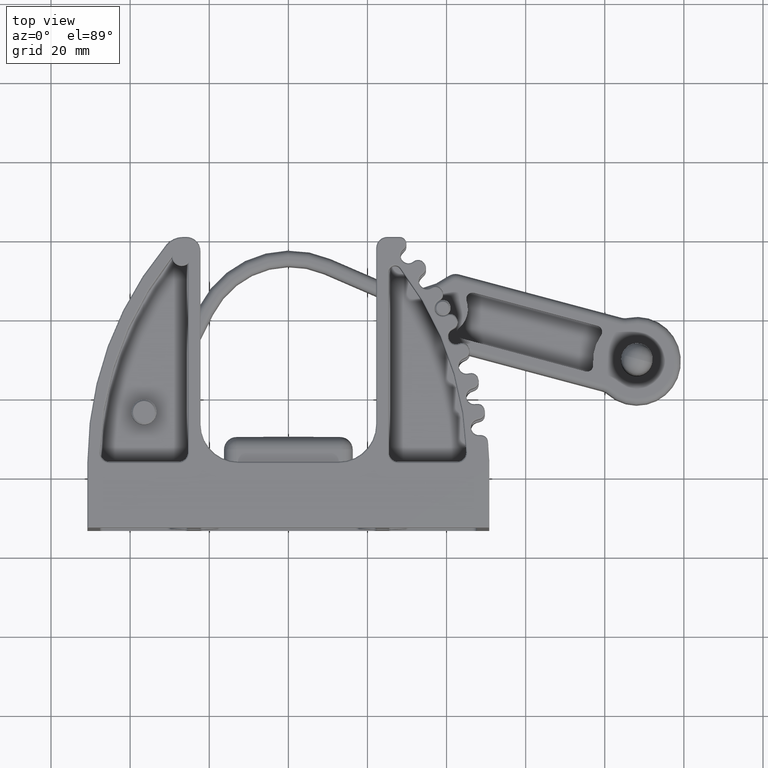
[diagram: clean part render]
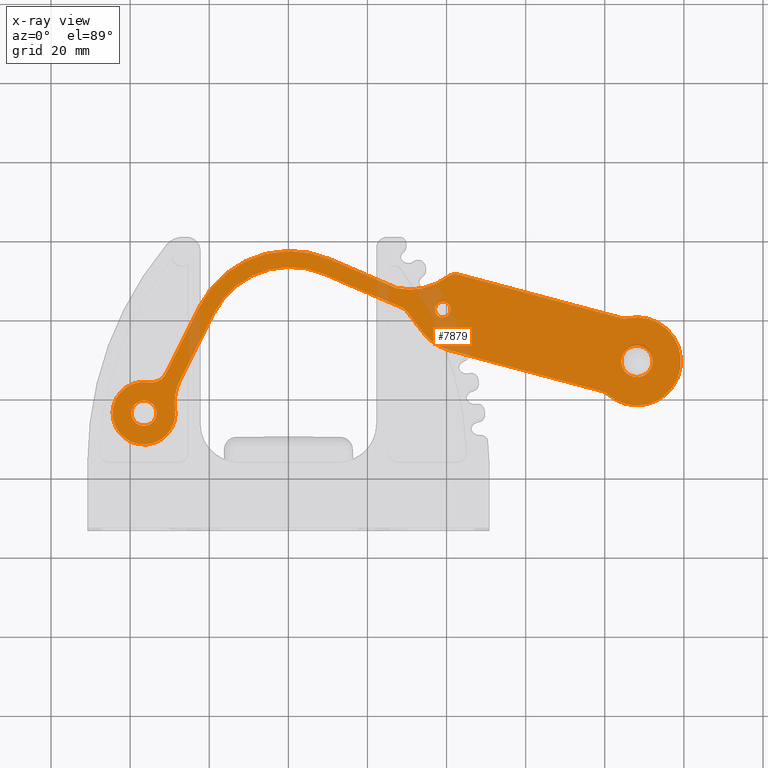
[diagram: x-ray — body ghosted, one internal face saturated and labeled with its STEP entity id]
A machine part, top view, then the same camera in x-ray: the body is ghosted and one INTERNAL B-rep face — a face not visible from any outside direction — is saturated and labeled: STEP entity #7879.
In plain terms, the highlighted planar face has unit normal (-0, 0, 1).
Its self-contained STEP definition (entity closure, byte-faithful):
#91 = DIRECTION ( 'NONE',  ( 3.761581922631320000E-036, -1.504632769052528000E-036, -1.000000000000000000 ) ) ;
#177 = ORIENTED_EDGE ( 'NONE', *, *, #5335, .T. ) ;
#294 = ORIENTED_EDGE ( 'NONE', *, *, #15690, .T. ) ;
#391 = EDGE_CURVE ( 'NONE', #8888, #29413, #24514, .T. ) ;
#406 = DIRECTION ( 'NONE',  ( -3.761581922631320000E-036, 1.504632769052528000E-036, 1.000000000000000000 ) ) ;
#488 = EDGE_CURVE ( 'NONE', #7400, #12127, #28442, .T. ) ;
#491 = LINE ( 'NONE', #26630, #29451 ) ;
#517 = CARTESIAN_POINT ( 'NONE',  ( 0.0000000000000000000, 0.0000000000000000000, 0.0000000000000000000 ) ) ;
#873 = AXIS2_PLACEMENT_3D ( 'NONE', #24998, #11306, #27273 ) ;
#1125 = DIRECTION ( 'NONE',  ( 1.000000000000000000, 0.0000000000000000000, -2.633107345841919300E-036 ) ) ;
#1254 = CARTESIAN_POINT ( 'NONE',  ( 3.127005977522338200, 0.5625000000000003300, 1.365923996832131600E-016 ) ) ;
#1344 = CIRCLE ( 'NONE', #6646, 0.4375000000000010000 ) ;
#1466 = DIRECTION ( 'NONE',  ( 1.000000000000000000, 0.0000000000000000000, -2.633107345841919000E-036 ) ) ;
#1485 = CARTESIAN_POINT ( 'NONE',  ( 3.234208584750658800, -0.1874999999999998300, 1.365923996832131600E-016 ) ) ;
#1660 = AXIS2_PLACEMENT_3D ( 'NONE', #9490, #25454, #11805 ) ;
#1772 = CARTESIAN_POINT ( 'NONE',  ( 0.7078158918791290800, -1.270111953763838300, 0.0000000000000000000 ) ) ;
#1855 = CARTESIAN_POINT ( 'NONE',  ( 4.804805898398901000, -0.1875000000000010800, 1.365923996832131600E-016 ) ) ;
#2029 = DIRECTION ( 'NONE',  ( 1.000000000000000000, 1.761747773680471700E-015, -2.633107345841923000E-036 ) ) ;
#2066 = ORIENTED_EDGE ( 'NONE', *, *, #25351, .F. ) ;
#2069 = CIRCLE ( 'NONE', #1660, 0.1250000000000004400 ) ;
#2136 = DIRECTION ( 'NONE',  ( 1.000000000000000000, 0.0000000000000000000, -2.633107345841914700E-036 ) ) ;
#2143 = CARTESIAN_POINT ( 'NONE',  ( 0.5804401961130519800, -1.576848098390637700, 4.701977403289150000E-037 ) ) ;
#2417 = CARTESIAN_POINT ( 'NONE',  ( 2.644572853812336100, 0.1045000000000007600, 0.0000000000000000000 ) ) ;
#2481 = CIRCLE ( 'NONE', #27576, 0.1624932898991211500 ) ;
#2554 = EDGE_CURVE ( 'NONE', #5476, #25522, #14223, .T. ) ;
#2650 = AXIS2_PLACEMENT_3D ( 'NONE', #18439, #4764, #20741 ) ;
#2662 = VERTEX_POINT ( 'NONE', #27389 ) ;
#2722 = LINE ( 'NONE', #6743, #6823 ) ;
#2878 = CARTESIAN_POINT ( 'NONE',  ( 2.927019829343439700, -0.08200610711542508100, 1.365923996832131600E-016 ) ) ;
#3065 = FACE_OUTER_BOUND ( 'NONE', #19476, .T. ) ;
#3114 = ORIENTED_EDGE ( 'NONE', *, *, #2554, .T. ) ;
#3164 = EDGE_CURVE ( 'NONE', #20089, #10921, #5978, .T. ) ;
#3852 = DIRECTION ( 'NONE',  ( -3.761581922631320000E-036, 1.504632769052528000E-036, 1.000000000000000000 ) ) ;
#3872 = ORIENTED_EDGE ( 'NONE', *, *, #12607, .F. ) ;
#4121 = EDGE_CURVE ( 'NONE', #21636, #23005, #18916, .T. ) ;
#4175 = VERTEX_POINT ( 'NONE', #22339 ) ;
#4252 = ORIENTED_EDGE ( 'NONE', *, *, #391, .T. ) ;
#4375 = CARTESIAN_POINT ( 'NONE',  ( 0.7181599584110964800, -1.168933562693651200, 1.365923996832131600E-016 ) ) ;
#4698 = ORIENTED_EDGE ( 'NONE', *, *, #18480, .T. ) ;
#4764 = DIRECTION ( 'NONE',  ( 3.761581922631320000E-036, -1.504632769052528000E-036, -1.000000000000000000 ) ) ;
#4812 = ORIENTED_EDGE ( 'NONE', *, *, #16651, .T. ) ;
#4868 = VERTEX_POINT ( 'NONE', #18384 ) ;
#4958 = ORIENTED_EDGE ( 'NONE', *, *, #7484, .T. ) ;
#5169 = CARTESIAN_POINT ( 'NONE',  ( 0.7448154637153880900, -1.458872658149562800, 1.365923996832131600E-016 ) ) ;
#5320 = CARTESIAN_POINT ( 'NONE',  ( 5.062500000000001800, 0.1875000000000003900, 0.0000000000000000000 ) ) ;
#5335 = EDGE_CURVE ( 'NONE', #2662, #23273, #21324, .T. ) ;
#5476 = VERTEX_POINT ( 'NONE', #1855 ) ;
#5543 = VECTOR ( 'NONE', #9518, 39.37007874015748900 ) ;
#5744 = LINE ( 'NONE', #7570, #11827 ) ;
#5906 = ORIENTED_EDGE ( 'NONE', *, *, #9797, .T. ) ;
#5978 = CIRCLE ( 'NONE', #2650, 0.5000000000000007800 ) ;
#6266 = CARTESIAN_POINT ( 'NONE',  ( 0.4554401961130519800, -1.576848098390637700, 0.0000000000000000000 ) ) ;
#6283 = DIRECTION ( 'NONE',  ( -0.9891385689570010300, 0.1469860245115031400, 6.394689268473226700E-036 ) ) ;
#6513 = AXIS2_PLACEMENT_3D ( 'NONE', #22657, #8991, #24964 ) ;
#6525 = ORIENTED_EDGE ( 'NONE', *, *, #25061, .T. ) ;
#6646 = AXIS2_PLACEMENT_3D ( 'NONE', #14055, #406, #16383 ) ;
#6743 = CARTESIAN_POINT ( 'NONE',  ( 0.7181599584110964800, -1.168933562693651200, 0.0000000000000000000 ) ) ;
#6823 = VECTOR ( 'NONE', #22704, 39.37007874015748900 ) ;
#6867 = ORIENTED_EDGE ( 'NONE', *, *, #27019, .F. ) ;
#6938 = VERTEX_POINT ( 'NONE', #20672 ) ;
#6970 = EDGE_LOOP ( 'NONE', ( #9918, #2066 ) ) ;
#7043 = AXIS2_PLACEMENT_3D ( 'NONE', #517, #25677, #11998 ) ;
#7063 = CARTESIAN_POINT ( 'NONE',  ( 2.721370042664141800, 0.07812652677885507900, 1.365923996832131600E-016 ) ) ;
#7266 = CARTESIAN_POINT ( 'NONE',  ( 1.828273722018075100, 0.2258020783540451700, 1.365923996832131600E-016 ) ) ;
#7400 = VERTEX_POINT ( 'NONE', #7266 ) ;
#7484 = EDGE_CURVE ( 'NONE', #18217, #14233, #5744, .T. ) ;
#7570 = CARTESIAN_POINT ( 'NONE',  ( 2.721370042664141800, 0.07812652677885507900, 0.0000000000000000000 ) ) ;
#7593 = DIRECTION ( 'NONE',  ( 1.000000000000000000, 0.0000000000000000000, -2.633107345841923300E-036 ) ) ;
#7698 = EDGE_CURVE ( 'NONE', #10921, #21733, #2722, .T. ) ;
#7879 = ADVANCED_FACE ( 'NONE', ( #3065, #9141, #26627, #8425 ), #18807, .T. ) ;
#7968 = CARTESIAN_POINT ( 'NONE',  ( 0.3304401961130519200, -1.576848098390637700, -4.701977403289150000E-037 ) ) ;
#8425 = FACE_BOUND ( 'NONE', #6970, .T. ) ;
#8546 = ORIENTED_EDGE ( 'NONE', *, *, #20486, .T. ) ;
#8558 = DIRECTION ( 'NONE',  ( -3.761581922631320000E-036, 1.504632769052528000E-036, 1.000000000000000000 ) ) ;
#8571 = DIRECTION ( 'NONE',  ( 1.000000000000000000, 0.0000000000000000000, -2.633107345841919300E-036 ) ) ;
#8584 = CARTESIAN_POINT ( 'NONE',  ( 1.851240288347999700, 0.3803549797535787400, 0.0000000000000000000 ) ) ;
#8624 = CARTESIAN_POINT ( 'NONE',  ( 0.5651424792023360700, -1.137315315484217700, 1.365923996832131600E-016 ) ) ;
#8752 = AXIS2_PLACEMENT_3D ( 'NONE', #13367, #29374, #15698 ) ;
#8888 = VERTEX_POINT ( 'NONE', #1254 ) ;
#8908 = CARTESIAN_POINT ( 'NONE',  ( 0.4229204446123867600, -1.266044759022585000, 1.365923996832131600E-016 ) ) ;
#8991 = DIRECTION ( 'NONE',  ( -3.761581922631320000E-036, 1.504632769052528000E-036, 1.000000000000000000 ) ) ;
#9141 = FACE_BOUND ( 'NONE', #14033, .T. ) ;
#9286 = CIRCLE ( 'NONE', #6513, 0.1250000000000002500 ) ;
#9490 = CARTESIAN_POINT ( 'NONE',  ( 2.644572853812342300, -0.02049999999999995900, 0.0000000000000000000 ) ) ;
#9518 = DIRECTION ( 'NONE',  ( -0.2023567821403768100, -0.9793118669360603200, -2.256949153578784700E-036 ) ) ;
#9623 = VECTOR ( 'NONE', #6283, 39.37007874015747400 ) ;
#9636 = CARTESIAN_POINT ( 'NONE',  ( 0.8677042951441749100, -0.4452091485833831700, 1.365923996832131600E-016 ) ) ;
#9758 = DIRECTION ( 'NONE',  ( 3.761581922631320000E-036, -1.504632769052528000E-036, -1.000000000000000000 ) ) ;
#9797 = EDGE_CURVE ( 'NONE', #27260, #21636, #21754, .T. ) ;
#9918 = ORIENTED_EDGE ( 'NONE', *, *, #22813, .F. ) ;
#10296 = AXIS2_PLACEMENT_3D ( 'NONE', #17534, #3852, #19817 ) ;
#10428 = DIRECTION ( 'NONE',  ( 3.761581922631320000E-036, -1.504632769052528000E-036, -1.000000000000000000 ) ) ;
#10534 = CARTESIAN_POINT ( 'NONE',  ( 3.140499999999999400, 0.1874999999999998300, 2.934033899652433100E-037 ) ) ;
#10565 = EDGE_CURVE ( 'NONE', #25522, #2662, #1344, .T. ) ;
#10921 = VERTEX_POINT ( 'NONE', #4375 ) ;
#11029 = CARTESIAN_POINT ( 'NONE',  ( 2.984499999999999300, 0.1874999999999998300, -2.934033899652432600E-037 ) ) ;
#11047 = CIRCLE ( 'NONE', #16603, 0.5000000000000007800 ) ;
#11056 = LINE ( 'NONE', #8584, #9623 ) ;
#11217 = ORIENTED_EDGE ( 'NONE', *, *, #26359, .F. ) ;
#11258 = DIRECTION ( 'NONE',  ( -3.761581922631320000E-036, 1.504632769052528000E-036, 1.000000000000000000 ) ) ;
#11306 = DIRECTION ( 'NONE',  ( 3.761581922631320000E-036, -1.504632769052528000E-036, -1.000000000000000000 ) ) ;
#11319 = AXIS2_PLACEMENT_3D ( 'NONE', #28506, #14824, #1125 ) ;
#11327 = ORIENTED_EDGE ( 'NONE', *, *, #488, .T. ) ;
#11334 = VERTEX_POINT ( 'NONE', #2143 ) ;
#11386 = ORIENTED_EDGE ( 'NONE', *, *, #4121, .T. ) ;
#11501 = AXIS2_PLACEMENT_3D ( 'NONE', #6266, #22236, #8571 ) ;
#11620 = LINE ( 'NONE', #23194, #5543 ) ;
#11683 = CIRCLE ( 'NONE', #8752, 1.009105567046601400 ) ;
#11805 = DIRECTION ( 'NONE',  ( 1.000000000000000000, 3.551402391763529800E-015, -2.633107345841922700E-036 ) ) ;
#11827 = VECTOR ( 'NONE', #21245, 39.37007874015748100 ) ;
#11998 = DIRECTION ( 'NONE',  ( 1.000000000000000000, -5.171373560126677400E-042, -2.633107345841919000E-036 ) ) ;
#12127 = VERTEX_POINT ( 'NONE', #15466 ) ;
#12607 = EDGE_CURVE ( 'NONE', #6938, #17469, #26626, .T. ) ;
#12772 = AXIS2_PLACEMENT_3D ( 'NONE', #24959, #11258, #27243 ) ;
#12889 = DIRECTION ( 'NONE',  ( -3.761581922631320000E-036, 1.504632769052528000E-036, 1.000000000000000000 ) ) ;
#12966 = DIRECTION ( 'NONE',  ( 1.000000000000000000, -5.171373560126676100E-042, -3.009265538105050700E-036 ) ) ;
#13180 = VERTEX_POINT ( 'NONE', #11029 ) ;
#13308 = DIRECTION ( 'NONE',  ( 3.761581922631320000E-036, -1.504632769052528000E-036, -1.000000000000000000 ) ) ;
#13367 = CARTESIAN_POINT ( 'NONE',  ( 1.702915872735392400, -0.6177902567614397300, 0.0000000000000000000 ) ) ;
#13498 = CARTESIAN_POINT ( 'NONE',  ( 4.906250000000000000, 0.1875000000000003900, -5.877471754111508500E-037 ) ) ;
#13501 = DIRECTION ( 'NONE',  ( -3.761581922631320000E-036, 1.504632769052528000E-036, 1.000000000000000000 ) ) ;
#13732 = CIRCLE ( 'NONE', #15454, 0.07800000000000009700 ) ;
#13750 = CARTESIAN_POINT ( 'NONE',  ( 0.4060108721066453300, -1.104433696220828800, 0.0000000000000000000 ) ) ;
#13836 = CIRCLE ( 'NONE', #17147, 0.1250000000000002500 ) ;
#14005 = EDGE_CURVE ( 'NONE', #4868, #18359, #11056, .T. ) ;
#14033 = EDGE_LOOP ( 'NONE', ( #27590, #6867 ) ) ;
#14055 = CARTESIAN_POINT ( 'NONE',  ( 5.062500000000001800, 0.1875000000000003900, 0.0000000000000000000 ) ) ;
#14223 = CIRCLE ( 'NONE', #27330, 0.1249999999999999000 ) ;
#14233 = VERTEX_POINT ( 'NONE', #2878 ) ;
#14291 = CIRCLE ( 'NONE', #25087, 0.1562500000000019200 ) ;
#14481 = CIRCLE ( 'NONE', #10296, 0.3125000000000005600 ) ;
#14824 = DIRECTION ( 'NONE',  ( -3.761581922631320000E-036, 1.504632769052528000E-036, 1.000000000000000000 ) ) ;
#14914 = CARTESIAN_POINT ( 'NONE',  ( 3.028484908572962400, 0.5144324312177401800, 1.365923996832131600E-016 ) ) ;
#15145 = DIRECTION ( 'NONE',  ( -3.761581922631320000E-036, 1.504632769052528000E-036, 1.000000000000000000 ) ) ;
#15312 = EDGE_CURVE ( 'NONE', #12127, #18217, #2069, .T. ) ;
#15333 = ORIENTED_EDGE ( 'NONE', *, *, #24376, .T. ) ;
#15454 = AXIS2_PLACEMENT_3D ( 'NONE', #27187, #13501, #29477 ) ;
#15466 = CARTESIAN_POINT ( 'NONE',  ( 2.644572853812336100, 0.1045000000000007600, 1.365923996832131600E-016 ) ) ;
#15661 = EDGE_CURVE ( 'NONE', #18359, #4175, #11683, .T. ) ;
#15690 = EDGE_CURVE ( 'NONE', #23273, #8888, #23098, .T. ) ;
#15698 = DIRECTION ( 'NONE',  ( 1.000000000000000000, 0.0000000000000000000, -2.633107345841919000E-036 ) ) ;
#15732 = DIRECTION ( 'NONE',  ( 3.761581922631320000E-036, -1.504632769052528000E-036, -1.000000000000000000 ) ) ;
#15799 = DIRECTION ( 'NONE',  ( -3.761581922631320000E-036, 1.504632769052528000E-036, 1.000000000000000000 ) ) ;
#16078 = DIRECTION ( 'NONE',  ( 1.000000000000000000, 8.406033244081171500E-016, -2.633107345841922000E-036 ) ) ;
#16137 = CARTESIAN_POINT ( 'NONE',  ( 4.862071254310262900, -0.2013888888888882000, 1.365923996832131600E-016 ) ) ;
#16383 = DIRECTION ( 'NONE',  ( 1.000000000000000000, 0.0000000000000000000, -2.633107345841918300E-036 ) ) ;
#16539 = VERTEX_POINT ( 'NONE', #7968 ) ;
#16603 = AXIS2_PLACEMENT_3D ( 'NONE', #23443, #9758, #25736 ) ;
#16651 = EDGE_CURVE ( 'NONE', #24198, #5476, #491, .T. ) ;
#17147 = AXIS2_PLACEMENT_3D ( 'NONE', #28840, #15145, #1466 ) ;
#17455 = VERTEX_POINT ( 'NONE', #8624 ) ;
#17469 = VERTEX_POINT ( 'NONE', #13498 ) ;
#17534 = CARTESIAN_POINT ( 'NONE',  ( 0.4554401961130519800, -1.576848098390637700, 0.0000000000000000000 ) ) ;
#18217 = VERTEX_POINT ( 'NONE', #7063 ) ;
#18359 = VERTEX_POINT ( 'NONE', #23633 ) ;
#18384 = CARTESIAN_POINT ( 'NONE',  ( 2.562500000000000000, 0.2746617627545027100, 1.365923996832131600E-016 ) ) ;
#18409 = ORIENTED_EDGE ( 'NONE', *, *, #15312, .T. ) ;
#18439 = CARTESIAN_POINT ( 'NONE',  ( 1.207815891879129100, -1.270111953763838300, 0.0000000000000000000 ) ) ;
#18480 = EDGE_CURVE ( 'NONE', #27778, #27260, #14481, .T. ) ;
#18622 = EDGE_CURVE ( 'NONE', #4175, #17455, #11620, .T. ) ;
#18669 = AXIS2_PLACEMENT_3D ( 'NONE', #29488, #15799, #2136 ) ;
#18807 = PLANE ( 'NONE',  #7043 ) ;
#18916 = CIRCLE ( 'NONE', #11501, 0.3125000000000005600 ) ;
#19050 = EDGE_CURVE ( 'NONE', #13180, #21432, #13732, .T. ) ;
#19476 = EDGE_LOOP ( 'NONE', ( #4698, #5906, #11386, #15333, #25181, #21407, #8546, #11327, #18409, #4958, #6525, #4812, #3114, #27094, #177, #294, #4252, #20187, #27121, #21049, #29190, #19483 ) ) ;
#19483 = ORIENTED_EDGE ( 'NONE', *, *, #26618, .T. ) ;
#19817 = DIRECTION ( 'NONE',  ( 1.000000000000000000, 0.0000000000000000000, -2.633107345841919300E-036 ) ) ;
#20089 = VERTEX_POINT ( 'NONE', #1772 ) ;
#20108 = CIRCLE ( 'NONE', #23452, 0.8528555670466004800 ) ;
#20187 = ORIENTED_EDGE ( 'NONE', *, *, #20544, .T. ) ;
#20284 = DIRECTION ( 'NONE',  ( -1.000000000000000000, 5.171373560126676100E-042, 3.009265538105050700E-036 ) ) ;
#20486 = EDGE_CURVE ( 'NONE', #21733, #7400, #20108, .T. ) ;
#20544 = EDGE_CURVE ( 'NONE', #29413, #4868, #25446, .T. ) ;
#20672 = CARTESIAN_POINT ( 'NONE',  ( 5.218750000000003600, 0.1875000000000004200, 5.877471754111509400E-037 ) ) ;
#20741 = DIRECTION ( 'NONE',  ( 1.000000000000000000, 0.0000000000000000000, -2.633107345841919300E-036 ) ) ;
#21049 = ORIENTED_EDGE ( 'NONE', *, *, #15661, .T. ) ;
#21245 = DIRECTION ( 'NONE',  ( 0.7890122142308524400, -0.6143775108144238200, -7.147005652999508000E-036 ) ) ;
#21272 = DIRECTION ( 'NONE',  ( -3.761581922631320000E-036, 1.504632769052528000E-036, 1.000000000000000000 ) ) ;
#21324 = CIRCLE ( 'NONE', #25509, 0.1249999999999999000 ) ;
#21407 = ORIENTED_EDGE ( 'NONE', *, *, #7698, .T. ) ;
#21432 = VERTEX_POINT ( 'NONE', #10534 ) ;
#21636 = VERTEX_POINT ( 'NONE', #22989 ) ;
#21733 = VERTEX_POINT ( 'NONE', #9636 ) ;
#21754 = CIRCLE ( 'NONE', #11319, 0.3125000000000005600 ) ;
#22228 = CARTESIAN_POINT ( 'NONE',  ( 3.062499999999999600, 0.1874999999999998300, 0.0000000000000000000 ) ) ;
#22236 = DIRECTION ( 'NONE',  ( -3.761581922631320000E-036, 1.504632769052528000E-036, 1.000000000000000000 ) ) ;
#22339 = CARTESIAN_POINT ( 'NONE',  ( 0.7146868159354130600, -0.4135909013739492200, 1.365923996832131600E-016 ) ) ;
#22573 = CARTESIAN_POINT ( 'NONE',  ( 3.127005977522338200, 0.5625000000000003300, 0.0000000000000000000 ) ) ;
#22657 = CARTESIAN_POINT ( 'NONE',  ( 0.4554401961130519800, -1.576848098390637700, 0.0000000000000000000 ) ) ;
#22704 = DIRECTION ( 'NONE',  ( 0.2023567821403770000, 0.9793118669360603200, 2.256949153578784700E-036 ) ) ;
#22813 = EDGE_CURVE ( 'NONE', #16539, #11334, #9286, .T. ) ;
#22989 = CARTESIAN_POINT ( 'NONE',  ( 0.7679401961130519800, -1.576848098390637700, 0.0000000000000000000 ) ) ;
#23005 = VERTEX_POINT ( 'NONE', #5169 ) ;
#23098 = LINE ( 'NONE', #22573, #28468 ) ;
#23194 = CARTESIAN_POINT ( 'NONE',  ( 0.5651424792023360700, -1.137315315484217700, 0.0000000000000000000 ) ) ;
#23273 = VERTEX_POINT ( 'NONE', #24808 ) ;
#23443 = CARTESIAN_POINT ( 'NONE',  ( 1.207815891879129100, -1.270111953763838300, 0.0000000000000000000 ) ) ;
#23452 = AXIS2_PLACEMENT_3D ( 'NONE', #29391, #15732, #2029 ) ;
#23557 = CIRCLE ( 'NONE', #28883, 0.07800000000000009700 ) ;
#23633 = CARTESIAN_POINT ( 'NONE',  ( 1.851240288347999700, 0.3803549797535787400, 1.365923996832131600E-016 ) ) ;
#23782 = AXIS2_PLACEMENT_3D ( 'NONE', #5320, #21272, #7593 ) ;
#24114 = CARTESIAN_POINT ( 'NONE',  ( 4.804805898398899300, 0.6875000000000002200, 0.0000000000000000000 ) ) ;
#24198 = VERTEX_POINT ( 'NONE', #1485 ) ;
#24376 = EDGE_CURVE ( 'NONE', #23005, #20089, #11047, .T. ) ;
#24514 = CIRCLE ( 'NONE', #18669, 0.1250000000000004400 ) ;
#24515 = DIRECTION ( 'NONE',  ( 1.000000000000000000, 0.0000000000000000000, -2.633107345841923700E-036 ) ) ;
#24808 = CARTESIAN_POINT ( 'NONE',  ( 4.804805898398899300, 0.5625000000000008900, 1.365923996832131600E-016 ) ) ;
#24959 = CARTESIAN_POINT ( 'NONE',  ( 3.234208584750654300, 0.3125000000000005600, 0.0000000000000000000 ) ) ;
#24964 = DIRECTION ( 'NONE',  ( 1.000000000000000000, 0.0000000000000000000, -2.633107345841919000E-036 ) ) ;
#24998 = CARTESIAN_POINT ( 'NONE',  ( 2.535879563826081800, 0.8990945873064407600, 0.0000000000000000000 ) ) ;
#25061 = EDGE_CURVE ( 'NONE', #14233, #24198, #26354, .T. ) ;
#25087 = AXIS2_PLACEMENT_3D ( 'NONE', #26536, #12889, #28875 ) ;
#25181 = ORIENTED_EDGE ( 'NONE', *, *, #3164, .T. ) ;
#25351 = EDGE_CURVE ( 'NONE', #11334, #16539, #13836, .T. ) ;
#25446 = CIRCLE ( 'NONE', #873, 0.6250000000000011100 ) ;
#25454 = DIRECTION ( 'NONE',  ( 3.761581922631320000E-036, -1.504632769052528000E-036, -1.000000000000000000 ) ) ;
#25509 = AXIS2_PLACEMENT_3D ( 'NONE', #24114, #10428, #26417 ) ;
#25522 = VERTEX_POINT ( 'NONE', #16137 ) ;
#25677 = DIRECTION ( 'NONE',  ( 2.633107345841919000E-036, 1.504632769052528000E-036, 1.000000000000000000 ) ) ;
#25736 = DIRECTION ( 'NONE',  ( 1.000000000000000000, 0.0000000000000000000, -2.633107345841919300E-036 ) ) ;
#26354 = CIRCLE ( 'NONE', #12772, 0.5000000000000006700 ) ;
#26359 = EDGE_CURVE ( 'NONE', #17469, #6938, #14291, .T. ) ;
#26417 = DIRECTION ( 'NONE',  ( 1.000000000000000000, 2.185478394931412200E-015, -2.633107345841930400E-036 ) ) ;
#26536 = CARTESIAN_POINT ( 'NONE',  ( 5.062500000000001800, 0.1875000000000003900, 0.0000000000000000000 ) ) ;
#26618 = EDGE_CURVE ( 'NONE', #17455, #27778, #2481, .T. ) ;
#26627 = FACE_BOUND ( 'NONE', #27855, .T. ) ;
#26626 = CIRCLE ( 'NONE', #23782, 0.1562500000000019200 ) ;
#26630 = CARTESIAN_POINT ( 'NONE',  ( 3.234208584750658800, -0.1874999999999998300, 0.0000000000000000000 ) ) ;
#26983 = CARTESIAN_POINT ( 'NONE',  ( 4.804805898398896600, -0.3125000000000000000, 0.0000000000000000000 ) ) ;
#27019 = EDGE_CURVE ( 'NONE', #21432, #13180, #23557, .T. ) ;
#27094 = ORIENTED_EDGE ( 'NONE', *, *, #10565, .T. ) ;
#27121 = ORIENTED_EDGE ( 'NONE', *, *, #14005, .T. ) ;
#27187 = CARTESIAN_POINT ( 'NONE',  ( 3.062499999999999600, 0.1874999999999998300, 0.0000000000000000000 ) ) ;
#27243 = DIRECTION ( 'NONE',  ( 1.000000000000000000, 0.0000000000000000000, -2.633107345841920000E-036 ) ) ;
#27260 = VERTEX_POINT ( 'NONE', #29202 ) ;
#27273 = DIRECTION ( 'NONE',  ( 1.000000000000000000, 0.0000000000000000000, -2.633107345841921000E-036 ) ) ;
#27330 = AXIS2_PLACEMENT_3D ( 'NONE', #26983, #13308, #29318 ) ;
#27389 = CARTESIAN_POINT ( 'NONE',  ( 4.862071254310252200, 0.5763888888888889500, 1.365923996832131600E-016 ) ) ;
#27486 = DIRECTION ( 'NONE',  ( 0.9891385689570009200, -0.1469860245115034200, -6.770847460736357300E-036 ) ) ;
#27576 = AXIS2_PLACEMENT_3D ( 'NONE', #13750, #91, #16078 ) ;
#27590 = ORIENTED_EDGE ( 'NONE', *, *, #19050, .F. ) ;
#27719 = VECTOR ( 'NONE', #27486, 39.37007874015748100 ) ;
#27778 = VERTEX_POINT ( 'NONE', #8908 ) ;
#27855 = EDGE_LOOP ( 'NONE', ( #11217, #3872 ) ) ;
#28442 = LINE ( 'NONE', #2417, #27719 ) ;
#28468 = VECTOR ( 'NONE', #20284, 39.37007874015748100 ) ;
#28506 = CARTESIAN_POINT ( 'NONE',  ( 0.4554401961130519800, -1.576848098390637700, 0.0000000000000000000 ) ) ;
#28840 = CARTESIAN_POINT ( 'NONE',  ( 0.4554401961130519800, -1.576848098390637700, 0.0000000000000000000 ) ) ;
#28875 = DIRECTION ( 'NONE',  ( 1.000000000000000000, 0.0000000000000000000, -2.633107345841923300E-036 ) ) ;
#28883 = AXIS2_PLACEMENT_3D ( 'NONE', #22228, #8558, #24515 ) ;
#29190 = ORIENTED_EDGE ( 'NONE', *, *, #18622, .T. ) ;
#29202 = CARTESIAN_POINT ( 'NONE',  ( 0.1429401961130519500, -1.576848098390637700, 0.0000000000000000000 ) ) ;
#29318 = DIRECTION ( 'NONE',  ( 1.000000000000000000, -8.741913579725648600E-015, -2.633107345841914000E-036 ) ) ;
#29374 = DIRECTION ( 'NONE',  ( -3.761581922631320000E-036, 1.504632769052528000E-036, 1.000000000000000000 ) ) ;
#29391 = CARTESIAN_POINT ( 'NONE',  ( 1.702915872735392400, -0.6177902567614397300, 0.0000000000000000000 ) ) ;
#29413 = VERTEX_POINT ( 'NONE', #14914 ) ;
#29451 = VECTOR ( 'NONE', #12966, 39.37007874015748100 ) ;
#29477 = DIRECTION ( 'NONE',  ( 1.000000000000000000, 0.0000000000000000000, -2.633107345841923700E-036 ) ) ;
#29488 = CARTESIAN_POINT ( 'NONE',  ( 3.127005977522339600, 0.4375000000000010000, 0.0000000000000000000 ) ) ;